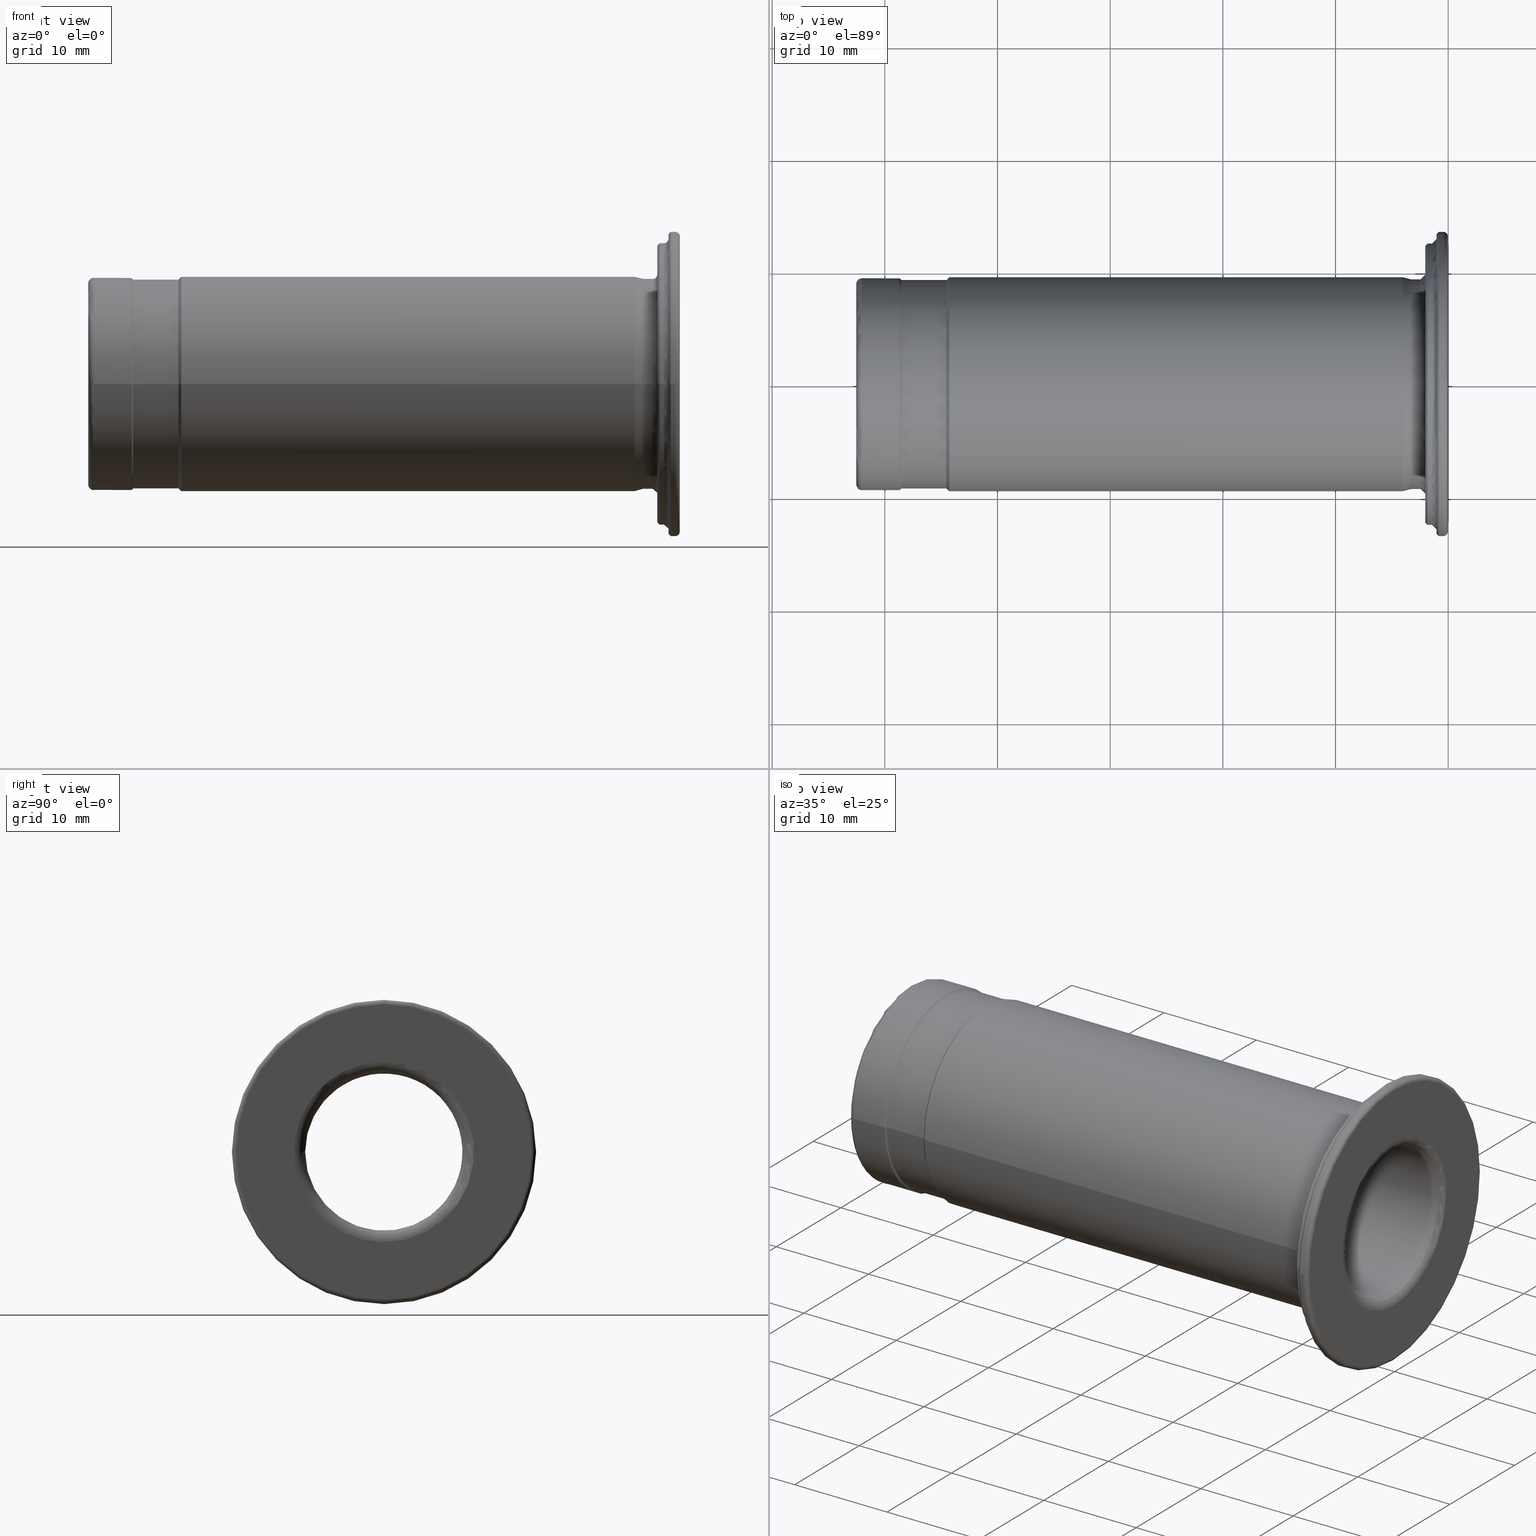
[diagram: canonical four-view strip — front | top / right | iso, engineering-drawing reading convention]
A machine part, canonical four-view strip (front | top / right | iso — engineering-drawing reading convention). The complete STEP part file that produces these views, byte-faithful:
ISO-10303-21;
HEADER;
/* Generated by software containing ST-Developer
 * from STEP Tools, Inc. (www.steptools.com) 
 */

FILE_DESCRIPTION(
/* description */ (''),
/* implementation_level */ '2;1');

FILE_NAME(
/* name */ 
'\\\\SSKT-NAS\\Lab-Data\\\X2\C5F0AD6CC18C\X0\\\DRAWING_3D\\1. \X2\C778BCA4D130\X0\\\
4. LAY-OUT\\ACCESSORY&OTEHERS\\HYDRAULIC CHUCK\\REDUCTION SLEEVE (COLL
ET)\\HK\\HK19.05\\METRIC\\HK19.05-14\\HK19.05-14.stp',
/* time_stamp */ '2023-08-17T14:44:47+09:00',
/* author */ ('YSH'),
/* organization */ (''),
/* preprocessor_version */ 'ST-DEVELOPER v18.1',
/* originating_system */ 'Autodesk Inventor 2022',
/* authorisation */ '');

FILE_SCHEMA (('AUTOMOTIVE_DESIGN { 1 0 10303 214 3 1 1 }'));
ENDSEC;

DATA;
#10=MECHANICAL_DESIGN_GEOMETRIC_PRESENTATION_REPRESENTATION('',(#13),#857);
#11=SHAPE_REPRESENTATION_RELATIONSHIP('SRR','None',#864,#12);
#12=ADVANCED_BREP_SHAPE_REPRESENTATION('',(#14),#856);
#13=STYLED_ITEM('',(#873),#14);
#14=MANIFOLD_SOLID_BREP('\X2\C194B9ACB4DC\X0\1',#451);
#15=FACE_BOUND('',#74,.T.);
#16=FACE_BOUND('',#79,.T.);
#17=FACE_BOUND('',#84,.T.);
#18=FACE_BOUND('',#95,.T.);
#19=PLANE('',#488);
#20=PLANE('',#498);
#21=PLANE('',#508);
#22=PLANE('',#535);
#23=CYLINDRICAL_SURFACE('',#482,9.32499999999937);
#24=CYLINDRICAL_SURFACE('',#492,12.4999999999996);
#25=CYLINDRICAL_SURFACE('',#502,13.5);
#26=CYLINDRICAL_SURFACE('',#521,7.00000000000097);
#27=CYLINDRICAL_SURFACE('',#525,7.50000000000011);
#28=CYLINDRICAL_SURFACE('',#529,8.2500000000001);
#29=CYLINDRICAL_SURFACE('',#541,9.42500000000011);
#30=CYLINDRICAL_SURFACE('',#545,9.27500000000011);
#31=CYLINDRICAL_SURFACE('',#549,9.5250000000001);
#32=TOROIDAL_SURFACE('',#478,9.72499999999992,0.4);
#33=TOROIDAL_SURFACE('',#485,9.72499999999899,0.4);
#34=TOROIDAL_SURFACE('',#495,12.8999999999993,0.4);
#35=TOROIDAL_SURFACE('',#505,13.1,0.4);
#36=TOROIDAL_SURFACE('',#510,8.00000000000099,1.);
#37=TOROIDAL_SURFACE('',#517,8.00000000000099,1.);
#38=TOROIDAL_SURFACE('',#532,8.75000000000009,0.5);
#39=TOROIDAL_SURFACE('',#537,8.92500000000015,0.5);
#40=FACE_OUTER_BOUND('',#69,.T.);
#41=FACE_OUTER_BOUND('',#70,.T.);
#42=FACE_OUTER_BOUND('',#71,.T.);
#43=FACE_OUTER_BOUND('',#72,.T.);
#44=FACE_OUTER_BOUND('',#73,.T.);
#45=FACE_OUTER_BOUND('',#75,.T.);
#46=FACE_OUTER_BOUND('',#76,.T.);
#47=FACE_OUTER_BOUND('',#77,.T.);
#48=FACE_OUTER_BOUND('',#78,.T.);
#49=FACE_OUTER_BOUND('',#80,.T.);
#50=FACE_OUTER_BOUND('',#81,.T.);
#51=FACE_OUTER_BOUND('',#82,.T.);
#52=FACE_OUTER_BOUND('',#83,.T.);
#53=FACE_OUTER_BOUND('',#85,.T.);
#54=FACE_OUTER_BOUND('',#86,.T.);
#55=FACE_OUTER_BOUND('',#87,.T.);
#56=FACE_OUTER_BOUND('',#88,.T.);
#57=FACE_OUTER_BOUND('',#89,.T.);
#58=FACE_OUTER_BOUND('',#90,.T.);
#59=FACE_OUTER_BOUND('',#91,.T.);
#60=FACE_OUTER_BOUND('',#92,.T.);
#61=FACE_OUTER_BOUND('',#93,.T.);
#62=FACE_OUTER_BOUND('',#94,.T.);
#63=FACE_OUTER_BOUND('',#96,.T.);
#64=FACE_OUTER_BOUND('',#97,.T.);
#65=FACE_OUTER_BOUND('',#98,.T.);
#66=FACE_OUTER_BOUND('',#99,.T.);
#67=FACE_OUTER_BOUND('',#100,.T.);
#68=FACE_OUTER_BOUND('',#101,.T.);
#69=EDGE_LOOP('',(#286,#287,#288,#289,#290));
#70=EDGE_LOOP('',(#291,#292,#293,#294,#295,#296));
#71=EDGE_LOOP('',(#297,#298,#299,#300,#301,#302));
#72=EDGE_LOOP('',(#303,#304,#305,#306,#307));
#73=EDGE_LOOP('',(#308));
#74=EDGE_LOOP('',(#309));
#75=EDGE_LOOP('',(#310,#311,#312,#313));
#76=EDGE_LOOP('',(#314,#315,#316,#317,#318));
#77=EDGE_LOOP('',(#319,#320,#321,#322,#323));
#78=EDGE_LOOP('',(#324));
#79=EDGE_LOOP('',(#325));
#80=EDGE_LOOP('',(#326,#327,#328,#329));
#81=EDGE_LOOP('',(#330,#331,#332,#333,#334));
#82=EDGE_LOOP('',(#335,#336,#337,#338,#339));
#83=EDGE_LOOP('',(#340));
#84=EDGE_LOOP('',(#341));
#85=EDGE_LOOP('',(#342,#343,#344,#345,#346));
#86=EDGE_LOOP('',(#347,#348,#349,#350,#351,#352));
#87=EDGE_LOOP('',(#353,#354,#355,#356,#357,#358));
#88=EDGE_LOOP('',(#359,#360,#361,#362,#363));
#89=EDGE_LOOP('',(#364,#365,#366,#367));
#90=EDGE_LOOP('',(#368,#369,#370,#371));
#91=EDGE_LOOP('',(#372,#373,#374,#375));
#92=EDGE_LOOP('',(#376,#377,#378,#379,#380));
#93=EDGE_LOOP('',(#381,#382,#383,#384,#385));
#94=EDGE_LOOP('',(#386));
#95=EDGE_LOOP('',(#387));
#96=EDGE_LOOP('',(#388,#389,#390,#391,#392));
#97=EDGE_LOOP('',(#393,#394,#395,#396,#397));
#98=EDGE_LOOP('',(#398,#399,#400,#401));
#99=EDGE_LOOP('',(#402,#403,#404,#405));
#100=EDGE_LOOP('',(#406,#407,#408,#409));
#101=EDGE_LOOP('',(#410,#411,#412,#413));
#102=LINE('',#727,#119);
#103=LINE('',#740,#120);
#104=LINE('',#752,#121);
#105=LINE('',#757,#122);
#106=LINE('',#769,#123);
#107=LINE('',#774,#124);
#108=LINE('',#791,#125);
#109=LINE('',#803,#126);
#110=LINE('',#807,#127);
#111=LINE('',#811,#128);
#112=LINE('',#815,#129);
#113=LINE('',#819,#130);
#114=LINE('',#839,#131);
#115=LINE('',#843,#132);
#116=LINE('',#847,#133);
#117=LINE('',#851,#134);
#118=LINE('',#853,#135);
#119=VECTOR('',#556,9.43181483474202);
#120=VECTOR('',#573,9.32499999999937);
#121=VECTOR('',#590,12.4000000000002);
#122=VECTOR('',#595,12.4999999999996);
#123=VECTOR('',#612,13.4000000000002);
#124=VECTOR('',#617,13.5);
#125=VECTOR('',#640,7.16348369626317);
#126=VECTOR('',#655,7.00000000000097);
#127=VECTOR('',#660,7.25000000000053);
#128=VECTOR('',#665,7.50000000000011);
#129=VECTOR('',#670,7.8750000000001);
#130=VECTOR('',#675,8.2500000000001);
#131=VECTOR('',#702,9.42500000000011);
#132=VECTOR('',#707,9.3500000000001);
#133=VECTOR('',#712,9.27500000000011);
#134=VECTOR('',#717,9.4000000000001);
#135=VECTOR('',#720,9.5250000000001);
#136=CIRCLE('',#475,9.33862966948429);
#137=CIRCLE('',#476,9.5250000000001);
#138=CIRCLE('',#477,9.33862966948429);
#139=CIRCLE('',#479,0.4);
#140=CIRCLE('',#480,9.32499999999992);
#141=CIRCLE('',#481,9.32499999999992);
#142=CIRCLE('',#483,9.32499999999937);
#143=CIRCLE('',#484,9.32499999999937);
#144=CIRCLE('',#486,0.4);
#145=CIRCLE('',#487,9.72499999999901);
#146=CIRCLE('',#489,12.3000000000003);
#147=CIRCLE('',#491,12.5000000000001);
#148=CIRCLE('',#493,12.4999999999993);
#149=CIRCLE('',#494,12.4999999999993);
#150=CIRCLE('',#496,0.4);
#151=CIRCLE('',#497,12.8999999999993);
#152=CIRCLE('',#499,13.3000000000003);
#153=CIRCLE('',#501,13.5000000000001);
#154=CIRCLE('',#503,13.5);
#155=CIRCLE('',#504,13.5);
#156=CIRCLE('',#506,13.1);
#157=CIRCLE('',#507,0.4);
#158=CIRCLE('',#509,8.00000000000099);
#159=CIRCLE('',#511,7.29289321881442);
#160=CIRCLE('',#512,7.29289321881442);
#161=CIRCLE('',#513,1.);
#162=CIRCLE('',#515,7.03407417371191);
#163=CIRCLE('',#516,7.03407417371191);
#164=CIRCLE('',#518,7.00000000000097);
#165=CIRCLE('',#519,7.00000000000097);
#166=CIRCLE('',#520,1.);
#167=CIRCLE('',#522,7.00000000000097);
#168=CIRCLE('',#524,7.50000000000009);
#169=CIRCLE('',#526,7.50000000000009);
#170=CIRCLE('',#528,8.2500000000001);
#171=CIRCLE('',#530,8.25000000000009);
#172=CIRCLE('',#531,8.25000000000009);
#173=CIRCLE('',#533,8.75000000000009);
#174=CIRCLE('',#534,0.5);
#175=CIRCLE('',#536,8.92500000000015);
#176=CIRCLE('',#538,9.42500000000015);
#177=CIRCLE('',#539,9.42500000000015);
#178=CIRCLE('',#540,0.5);
#179=CIRCLE('',#542,9.42500000000008);
#180=CIRCLE('',#544,9.27500000000011);
#181=CIRCLE('',#546,9.27500000000011);
#182=CIRCLE('',#548,9.5250000000001);
#183=VERTEX_POINT('',#723);
#184=VERTEX_POINT('',#724);
#185=VERTEX_POINT('',#726);
#186=VERTEX_POINT('',#731);
#187=VERTEX_POINT('',#733);
#188=VERTEX_POINT('',#737);
#189=VERTEX_POINT('',#738);
#190=VERTEX_POINT('',#743);
#191=VERTEX_POINT('',#747);
#192=VERTEX_POINT('',#750);
#193=VERTEX_POINT('',#754);
#194=VERTEX_POINT('',#755);
#195=VERTEX_POINT('',#760);
#196=VERTEX_POINT('',#764);
#197=VERTEX_POINT('',#767);
#198=VERTEX_POINT('',#771);
#199=VERTEX_POINT('',#772);
#200=VERTEX_POINT('',#777);
#201=VERTEX_POINT('',#781);
#202=VERTEX_POINT('',#784);
#203=VERTEX_POINT('',#785);
#204=VERTEX_POINT('',#790);
#205=VERTEX_POINT('',#792);
#206=VERTEX_POINT('',#796);
#207=VERTEX_POINT('',#797);
#208=VERTEX_POINT('',#802);
#209=VERTEX_POINT('',#806);
#210=VERTEX_POINT('',#810);
#211=VERTEX_POINT('',#814);
#212=VERTEX_POINT('',#818);
#213=VERTEX_POINT('',#820);
#214=VERTEX_POINT('',#824);
#215=VERTEX_POINT('',#828);
#216=VERTEX_POINT('',#831);
#217=VERTEX_POINT('',#832);
#218=VERTEX_POINT('',#837);
#219=VERTEX_POINT('',#841);
#220=VERTEX_POINT('',#845);
#221=VERTEX_POINT('',#849);
#222=EDGE_CURVE('',#183,#184,#136,.T.);
#223=EDGE_CURVE('',#183,#185,#102,.T.);
#224=EDGE_CURVE('',#185,#185,#137,.T.);
#225=EDGE_CURVE('',#184,#183,#138,.T.);
#226=EDGE_CURVE('',#184,#186,#139,.T.);
#227=EDGE_CURVE('',#187,#186,#140,.T.);
#228=EDGE_CURVE('',#186,#187,#141,.T.);
#229=EDGE_CURVE('',#188,#189,#142,.T.);
#230=EDGE_CURVE('',#188,#187,#103,.T.);
#231=EDGE_CURVE('',#189,#188,#143,.T.);
#232=EDGE_CURVE('',#189,#190,#144,.T.);
#233=EDGE_CURVE('',#190,#190,#145,.T.);
#234=EDGE_CURVE('',#191,#191,#146,.T.);
#235=EDGE_CURVE('',#192,#192,#147,.T.);
#236=EDGE_CURVE('',#192,#191,#104,.T.);
#237=EDGE_CURVE('',#193,#194,#148,.T.);
#238=EDGE_CURVE('',#193,#192,#105,.T.);
#239=EDGE_CURVE('',#194,#193,#149,.T.);
#240=EDGE_CURVE('',#194,#195,#150,.T.);
#241=EDGE_CURVE('',#195,#195,#151,.T.);
#242=EDGE_CURVE('',#196,#196,#152,.T.);
#243=EDGE_CURVE('',#197,#197,#153,.T.);
#244=EDGE_CURVE('',#197,#196,#106,.T.);
#245=EDGE_CURVE('',#198,#199,#154,.T.);
#246=EDGE_CURVE('',#198,#197,#107,.T.);
#247=EDGE_CURVE('',#199,#198,#155,.T.);
#248=EDGE_CURVE('',#200,#200,#156,.T.);
#249=EDGE_CURVE('',#200,#199,#157,.T.);
#250=EDGE_CURVE('',#201,#201,#158,.T.);
#251=EDGE_CURVE('',#202,#203,#159,.T.);
#252=EDGE_CURVE('',#203,#202,#160,.T.);
#253=EDGE_CURVE('',#203,#201,#161,.T.);
#254=EDGE_CURVE('',#202,#204,#108,.T.);
#255=EDGE_CURVE('',#205,#204,#162,.T.);
#256=EDGE_CURVE('',#204,#205,#163,.T.);
#257=EDGE_CURVE('',#206,#207,#164,.T.);
#258=EDGE_CURVE('',#207,#206,#165,.T.);
#259=EDGE_CURVE('',#207,#205,#166,.T.);
#260=EDGE_CURVE('',#206,#208,#109,.T.);
#261=EDGE_CURVE('',#208,#208,#167,.T.);
#262=EDGE_CURVE('',#208,#209,#110,.T.);
#263=EDGE_CURVE('',#209,#209,#168,.T.);
#264=EDGE_CURVE('',#209,#210,#111,.T.);
#265=EDGE_CURVE('',#210,#210,#169,.T.);
#266=EDGE_CURVE('',#210,#211,#112,.T.);
#267=EDGE_CURVE('',#211,#211,#170,.T.);
#268=EDGE_CURVE('',#211,#212,#113,.T.);
#269=EDGE_CURVE('',#213,#212,#171,.T.);
#270=EDGE_CURVE('',#212,#213,#172,.T.);
#271=EDGE_CURVE('',#214,#214,#173,.T.);
#272=EDGE_CURVE('',#214,#213,#174,.T.);
#273=EDGE_CURVE('',#215,#215,#175,.T.);
#274=EDGE_CURVE('',#216,#217,#176,.T.);
#275=EDGE_CURVE('',#217,#216,#177,.T.);
#276=EDGE_CURVE('',#217,#215,#178,.T.);
#277=EDGE_CURVE('',#218,#218,#179,.T.);
#278=EDGE_CURVE('',#218,#216,#114,.T.);
#279=EDGE_CURVE('',#219,#219,#180,.T.);
#280=EDGE_CURVE('',#219,#218,#115,.T.);
#281=EDGE_CURVE('',#220,#220,#181,.T.);
#282=EDGE_CURVE('',#220,#219,#116,.T.);
#283=EDGE_CURVE('',#221,#221,#182,.T.);
#284=EDGE_CURVE('',#221,#220,#117,.T.);
#285=EDGE_CURVE('',#185,#221,#118,.T.);
#286=ORIENTED_EDGE('',*,*,#222,.F.);
#287=ORIENTED_EDGE('',*,*,#223,.T.);
#288=ORIENTED_EDGE('',*,*,#224,.T.);
#289=ORIENTED_EDGE('',*,*,#223,.F.);
#290=ORIENTED_EDGE('',*,*,#225,.F.);
#291=ORIENTED_EDGE('',*,*,#222,.T.);
#292=ORIENTED_EDGE('',*,*,#226,.T.);
#293=ORIENTED_EDGE('',*,*,#227,.F.);
#294=ORIENTED_EDGE('',*,*,#228,.F.);
#295=ORIENTED_EDGE('',*,*,#226,.F.);
#296=ORIENTED_EDGE('',*,*,#225,.T.);
#297=ORIENTED_EDGE('',*,*,#229,.F.);
#298=ORIENTED_EDGE('',*,*,#230,.T.);
#299=ORIENTED_EDGE('',*,*,#227,.T.);
#300=ORIENTED_EDGE('',*,*,#228,.T.);
#301=ORIENTED_EDGE('',*,*,#230,.F.);
#302=ORIENTED_EDGE('',*,*,#231,.F.);
#303=ORIENTED_EDGE('',*,*,#229,.T.);
#304=ORIENTED_EDGE('',*,*,#232,.T.);
#305=ORIENTED_EDGE('',*,*,#233,.F.);
#306=ORIENTED_EDGE('',*,*,#232,.F.);
#307=ORIENTED_EDGE('',*,*,#231,.T.);
#308=ORIENTED_EDGE('',*,*,#234,.F.);
#309=ORIENTED_EDGE('',*,*,#233,.T.);
#310=ORIENTED_EDGE('',*,*,#235,.F.);
#311=ORIENTED_EDGE('',*,*,#236,.T.);
#312=ORIENTED_EDGE('',*,*,#234,.T.);
#313=ORIENTED_EDGE('',*,*,#236,.F.);
#314=ORIENTED_EDGE('',*,*,#237,.F.);
#315=ORIENTED_EDGE('',*,*,#238,.T.);
#316=ORIENTED_EDGE('',*,*,#235,.T.);
#317=ORIENTED_EDGE('',*,*,#238,.F.);
#318=ORIENTED_EDGE('',*,*,#239,.F.);
#319=ORIENTED_EDGE('',*,*,#237,.T.);
#320=ORIENTED_EDGE('',*,*,#240,.T.);
#321=ORIENTED_EDGE('',*,*,#241,.F.);
#322=ORIENTED_EDGE('',*,*,#240,.F.);
#323=ORIENTED_EDGE('',*,*,#239,.T.);
#324=ORIENTED_EDGE('',*,*,#242,.F.);
#325=ORIENTED_EDGE('',*,*,#241,.T.);
#326=ORIENTED_EDGE('',*,*,#243,.F.);
#327=ORIENTED_EDGE('',*,*,#244,.T.);
#328=ORIENTED_EDGE('',*,*,#242,.T.);
#329=ORIENTED_EDGE('',*,*,#244,.F.);
#330=ORIENTED_EDGE('',*,*,#245,.F.);
#331=ORIENTED_EDGE('',*,*,#246,.T.);
#332=ORIENTED_EDGE('',*,*,#243,.T.);
#333=ORIENTED_EDGE('',*,*,#246,.F.);
#334=ORIENTED_EDGE('',*,*,#247,.F.);
#335=ORIENTED_EDGE('',*,*,#248,.F.);
#336=ORIENTED_EDGE('',*,*,#249,.T.);
#337=ORIENTED_EDGE('',*,*,#247,.T.);
#338=ORIENTED_EDGE('',*,*,#245,.T.);
#339=ORIENTED_EDGE('',*,*,#249,.F.);
#340=ORIENTED_EDGE('',*,*,#248,.T.);
#341=ORIENTED_EDGE('',*,*,#250,.F.);
#342=ORIENTED_EDGE('',*,*,#251,.F.);
#343=ORIENTED_EDGE('',*,*,#252,.F.);
#344=ORIENTED_EDGE('',*,*,#253,.T.);
#345=ORIENTED_EDGE('',*,*,#250,.T.);
#346=ORIENTED_EDGE('',*,*,#253,.F.);
#347=ORIENTED_EDGE('',*,*,#251,.T.);
#348=ORIENTED_EDGE('',*,*,#252,.T.);
#349=ORIENTED_EDGE('',*,*,#254,.T.);
#350=ORIENTED_EDGE('',*,*,#255,.F.);
#351=ORIENTED_EDGE('',*,*,#256,.F.);
#352=ORIENTED_EDGE('',*,*,#254,.F.);
#353=ORIENTED_EDGE('',*,*,#257,.F.);
#354=ORIENTED_EDGE('',*,*,#258,.F.);
#355=ORIENTED_EDGE('',*,*,#259,.T.);
#356=ORIENTED_EDGE('',*,*,#255,.T.);
#357=ORIENTED_EDGE('',*,*,#256,.T.);
#358=ORIENTED_EDGE('',*,*,#259,.F.);
#359=ORIENTED_EDGE('',*,*,#257,.T.);
#360=ORIENTED_EDGE('',*,*,#258,.T.);
#361=ORIENTED_EDGE('',*,*,#260,.T.);
#362=ORIENTED_EDGE('',*,*,#261,.F.);
#363=ORIENTED_EDGE('',*,*,#260,.F.);
#364=ORIENTED_EDGE('',*,*,#261,.T.);
#365=ORIENTED_EDGE('',*,*,#262,.T.);
#366=ORIENTED_EDGE('',*,*,#263,.F.);
#367=ORIENTED_EDGE('',*,*,#262,.F.);
#368=ORIENTED_EDGE('',*,*,#263,.T.);
#369=ORIENTED_EDGE('',*,*,#264,.T.);
#370=ORIENTED_EDGE('',*,*,#265,.F.);
#371=ORIENTED_EDGE('',*,*,#264,.F.);
#372=ORIENTED_EDGE('',*,*,#265,.T.);
#373=ORIENTED_EDGE('',*,*,#266,.T.);
#374=ORIENTED_EDGE('',*,*,#267,.F.);
#375=ORIENTED_EDGE('',*,*,#266,.F.);
#376=ORIENTED_EDGE('',*,*,#267,.T.);
#377=ORIENTED_EDGE('',*,*,#268,.T.);
#378=ORIENTED_EDGE('',*,*,#269,.F.);
#379=ORIENTED_EDGE('',*,*,#270,.F.);
#380=ORIENTED_EDGE('',*,*,#268,.F.);
#381=ORIENTED_EDGE('',*,*,#271,.F.);
#382=ORIENTED_EDGE('',*,*,#272,.T.);
#383=ORIENTED_EDGE('',*,*,#269,.T.);
#384=ORIENTED_EDGE('',*,*,#270,.T.);
#385=ORIENTED_EDGE('',*,*,#272,.F.);
#386=ORIENTED_EDGE('',*,*,#273,.F.);
#387=ORIENTED_EDGE('',*,*,#271,.T.);
#388=ORIENTED_EDGE('',*,*,#274,.F.);
#389=ORIENTED_EDGE('',*,*,#275,.F.);
#390=ORIENTED_EDGE('',*,*,#276,.T.);
#391=ORIENTED_EDGE('',*,*,#273,.T.);
#392=ORIENTED_EDGE('',*,*,#276,.F.);
#393=ORIENTED_EDGE('',*,*,#277,.F.);
#394=ORIENTED_EDGE('',*,*,#278,.T.);
#395=ORIENTED_EDGE('',*,*,#274,.T.);
#396=ORIENTED_EDGE('',*,*,#275,.T.);
#397=ORIENTED_EDGE('',*,*,#278,.F.);
#398=ORIENTED_EDGE('',*,*,#279,.F.);
#399=ORIENTED_EDGE('',*,*,#280,.T.);
#400=ORIENTED_EDGE('',*,*,#277,.T.);
#401=ORIENTED_EDGE('',*,*,#280,.F.);
#402=ORIENTED_EDGE('',*,*,#281,.F.);
#403=ORIENTED_EDGE('',*,*,#282,.T.);
#404=ORIENTED_EDGE('',*,*,#279,.T.);
#405=ORIENTED_EDGE('',*,*,#282,.F.);
#406=ORIENTED_EDGE('',*,*,#283,.F.);
#407=ORIENTED_EDGE('',*,*,#284,.T.);
#408=ORIENTED_EDGE('',*,*,#281,.T.);
#409=ORIENTED_EDGE('',*,*,#284,.F.);
#410=ORIENTED_EDGE('',*,*,#224,.F.);
#411=ORIENTED_EDGE('',*,*,#285,.T.);
#412=ORIENTED_EDGE('',*,*,#283,.T.);
#413=ORIENTED_EDGE('',*,*,#285,.F.);
#414=CONICAL_SURFACE('',#474,9.43181483474202,0.261799387799983);
#415=CONICAL_SURFACE('',#490,12.4000000000002,0.785398163396383);
#416=CONICAL_SURFACE('',#500,13.4000000000002,0.785398163396913);
#417=CONICAL_SURFACE('',#514,7.16348369626317,0.523598775598306);
#418=CONICAL_SURFACE('',#523,7.25000000000053,0.785398163397519);
#419=CONICAL_SURFACE('',#527,7.8750000000001,0.785398163397626);
#420=CONICAL_SURFACE('',#543,9.3500000000001,0.785398163396856);
#421=CONICAL_SURFACE('',#547,9.4000000000001,0.785398163397519);
#422=ADVANCED_FACE('',(#40),#414,.T.);
#423=ADVANCED_FACE('',(#41),#32,.F.);
#424=ADVANCED_FACE('',(#42),#23,.T.);
#425=ADVANCED_FACE('',(#43),#33,.F.);
#426=ADVANCED_FACE('',(#44,#15),#19,.T.);
#427=ADVANCED_FACE('',(#45),#415,.T.);
#428=ADVANCED_FACE('',(#46),#24,.T.);
#429=ADVANCED_FACE('',(#47),#34,.F.);
#430=ADVANCED_FACE('',(#48,#16),#20,.T.);
#431=ADVANCED_FACE('',(#49),#416,.T.);
#432=ADVANCED_FACE('',(#50),#25,.T.);
#433=ADVANCED_FACE('',(#51),#35,.T.);
#434=ADVANCED_FACE('',(#52,#17),#21,.T.);
#435=ADVANCED_FACE('',(#53),#36,.T.);
#436=ADVANCED_FACE('',(#54),#417,.F.);
#437=ADVANCED_FACE('',(#55),#37,.T.);
#438=ADVANCED_FACE('',(#56),#26,.F.);
#439=ADVANCED_FACE('',(#57),#418,.F.);
#440=ADVANCED_FACE('',(#58),#27,.F.);
#441=ADVANCED_FACE('',(#59),#419,.F.);
#442=ADVANCED_FACE('',(#60),#28,.F.);
#443=ADVANCED_FACE('',(#61),#38,.T.);
#444=ADVANCED_FACE('',(#62,#18),#22,.T.);
#445=ADVANCED_FACE('',(#63),#39,.T.);
#446=ADVANCED_FACE('',(#64),#29,.T.);
#447=ADVANCED_FACE('',(#65),#420,.T.);
#448=ADVANCED_FACE('',(#66),#30,.T.);
#449=ADVANCED_FACE('',(#67),#421,.T.);
#450=ADVANCED_FACE('',(#68),#31,.T.);
#451=CLOSED_SHELL('',(#422,#423,#424,#425,#426,#427,#428,#429,#430,#431,
#432,#433,#434,#435,#436,#437,#438,#439,#440,#441,#442,#443,#444,#445,#446,
#447,#448,#449,#450));
#452=DERIVED_UNIT_ELEMENT(#455,1.);
#453=DERIVED_UNIT_ELEMENT(#859,-3.);
#454=DIMENSIONAL_EXPONENTS(1.,0.,0.,0.,0.,0.,0.);
#455=(
CONVERSION_BASED_UNIT('gram',#457)
MASS_UNIT()
NAMED_UNIT(#454)
);
#456=(
MASS_UNIT()
NAMED_UNIT(*)
SI_UNIT(.KILO.,.GRAM.)
);
#457=MASS_MEASURE_WITH_UNIT(MASS_MEASURE(0.001),#456);
#458=DERIVED_UNIT((#452,#453));
#459=MEASURE_REPRESENTATION_ITEM('density measure',
POSITIVE_RATIO_MEASURE(7.85),#458);
#460=PROPERTY_DEFINITION_REPRESENTATION(#465,#462);
#461=PROPERTY_DEFINITION_REPRESENTATION(#466,#463);
#462=REPRESENTATION('material name',(#464),#856);
#463=REPRESENTATION('density',(#459),#856);
#464=DESCRIPTIVE_REPRESENTATION_ITEM('SUJ2','SUJ2');
#465=PROPERTY_DEFINITION('material property','material name',#866);
#466=PROPERTY_DEFINITION('material property','density of part',#866);
#467=DATE_TIME_ROLE('creation_date');
#468=APPLIED_DATE_AND_TIME_ASSIGNMENT(#469,#467,(#866));
#469=DATE_AND_TIME(#470,#471);
#470=CALENDAR_DATE(2023,17,8);
#471=LOCAL_TIME(0,0,0.,#472);
#472=COORDINATED_UNIVERSAL_TIME_OFFSET(0,0,.BEHIND.);
#473=AXIS2_PLACEMENT_3D('placement',#721,#550,#551);
#474=AXIS2_PLACEMENT_3D('',#722,#552,#553);
#475=AXIS2_PLACEMENT_3D('',#725,#554,#555);
#476=AXIS2_PLACEMENT_3D('',#728,#557,#558);
#477=AXIS2_PLACEMENT_3D('',#729,#559,#560);
#478=AXIS2_PLACEMENT_3D('',#730,#561,#562);
#479=AXIS2_PLACEMENT_3D('',#732,#563,#564);
#480=AXIS2_PLACEMENT_3D('',#734,#565,#566);
#481=AXIS2_PLACEMENT_3D('',#735,#567,#568);
#482=AXIS2_PLACEMENT_3D('',#736,#569,#570);
#483=AXIS2_PLACEMENT_3D('',#739,#571,#572);
#484=AXIS2_PLACEMENT_3D('',#741,#574,#575);
#485=AXIS2_PLACEMENT_3D('',#742,#576,#577);
#486=AXIS2_PLACEMENT_3D('',#744,#578,#579);
#487=AXIS2_PLACEMENT_3D('',#745,#580,#581);
#488=AXIS2_PLACEMENT_3D('',#746,#582,#583);
#489=AXIS2_PLACEMENT_3D('',#748,#584,#585);
#490=AXIS2_PLACEMENT_3D('',#749,#586,#587);
#491=AXIS2_PLACEMENT_3D('',#751,#588,#589);
#492=AXIS2_PLACEMENT_3D('',#753,#591,#592);
#493=AXIS2_PLACEMENT_3D('',#756,#593,#594);
#494=AXIS2_PLACEMENT_3D('',#758,#596,#597);
#495=AXIS2_PLACEMENT_3D('',#759,#598,#599);
#496=AXIS2_PLACEMENT_3D('',#761,#600,#601);
#497=AXIS2_PLACEMENT_3D('',#762,#602,#603);
#498=AXIS2_PLACEMENT_3D('',#763,#604,#605);
#499=AXIS2_PLACEMENT_3D('',#765,#606,#607);
#500=AXIS2_PLACEMENT_3D('',#766,#608,#609);
#501=AXIS2_PLACEMENT_3D('',#768,#610,#611);
#502=AXIS2_PLACEMENT_3D('',#770,#613,#614);
#503=AXIS2_PLACEMENT_3D('',#773,#615,#616);
#504=AXIS2_PLACEMENT_3D('',#775,#618,#619);
#505=AXIS2_PLACEMENT_3D('',#776,#620,#621);
#506=AXIS2_PLACEMENT_3D('',#778,#622,#623);
#507=AXIS2_PLACEMENT_3D('',#779,#624,#625);
#508=AXIS2_PLACEMENT_3D('',#780,#626,#627);
#509=AXIS2_PLACEMENT_3D('',#782,#628,#629);
#510=AXIS2_PLACEMENT_3D('',#783,#630,#631);
#511=AXIS2_PLACEMENT_3D('',#786,#632,#633);
#512=AXIS2_PLACEMENT_3D('',#787,#634,#635);
#513=AXIS2_PLACEMENT_3D('',#788,#636,#637);
#514=AXIS2_PLACEMENT_3D('',#789,#638,#639);
#515=AXIS2_PLACEMENT_3D('',#793,#641,#642);
#516=AXIS2_PLACEMENT_3D('',#794,#643,#644);
#517=AXIS2_PLACEMENT_3D('',#795,#645,#646);
#518=AXIS2_PLACEMENT_3D('',#798,#647,#648);
#519=AXIS2_PLACEMENT_3D('',#799,#649,#650);
#520=AXIS2_PLACEMENT_3D('',#800,#651,#652);
#521=AXIS2_PLACEMENT_3D('',#801,#653,#654);
#522=AXIS2_PLACEMENT_3D('',#804,#656,#657);
#523=AXIS2_PLACEMENT_3D('',#805,#658,#659);
#524=AXIS2_PLACEMENT_3D('',#808,#661,#662);
#525=AXIS2_PLACEMENT_3D('',#809,#663,#664);
#526=AXIS2_PLACEMENT_3D('',#812,#666,#667);
#527=AXIS2_PLACEMENT_3D('',#813,#668,#669);
#528=AXIS2_PLACEMENT_3D('',#816,#671,#672);
#529=AXIS2_PLACEMENT_3D('',#817,#673,#674);
#530=AXIS2_PLACEMENT_3D('',#821,#676,#677);
#531=AXIS2_PLACEMENT_3D('',#822,#678,#679);
#532=AXIS2_PLACEMENT_3D('',#823,#680,#681);
#533=AXIS2_PLACEMENT_3D('',#825,#682,#683);
#534=AXIS2_PLACEMENT_3D('',#826,#684,#685);
#535=AXIS2_PLACEMENT_3D('',#827,#686,#687);
#536=AXIS2_PLACEMENT_3D('',#829,#688,#689);
#537=AXIS2_PLACEMENT_3D('',#830,#690,#691);
#538=AXIS2_PLACEMENT_3D('',#833,#692,#693);
#539=AXIS2_PLACEMENT_3D('',#834,#694,#695);
#540=AXIS2_PLACEMENT_3D('',#835,#696,#697);
#541=AXIS2_PLACEMENT_3D('',#836,#698,#699);
#542=AXIS2_PLACEMENT_3D('',#838,#700,#701);
#543=AXIS2_PLACEMENT_3D('',#840,#703,#704);
#544=AXIS2_PLACEMENT_3D('',#842,#705,#706);
#545=AXIS2_PLACEMENT_3D('',#844,#708,#709);
#546=AXIS2_PLACEMENT_3D('',#846,#710,#711);
#547=AXIS2_PLACEMENT_3D('',#848,#713,#714);
#548=AXIS2_PLACEMENT_3D('',#850,#715,#716);
#549=AXIS2_PLACEMENT_3D('',#852,#718,#719);
#550=DIRECTION('axis',(0.,0.,1.));
#551=DIRECTION('refdir',(1.,0.,0.));
#552=DIRECTION('center_axis',(-1.,0.,0.));
#553=DIRECTION('ref_axis',(0.,1.,0.));
#554=DIRECTION('center_axis',(1.,0.,0.));
#555=DIRECTION('ref_axis',(0.,0.,-1.));
#556=DIRECTION('',(-0.965925826288852,-0.258819045103326,-3.16961915144163E-17));
#557=DIRECTION('center_axis',(1.,0.,0.));
#558=DIRECTION('ref_axis',(0.,0.,-1.));
#559=DIRECTION('center_axis',(1.,0.,0.));
#560=DIRECTION('ref_axis',(0.,0.,-1.));
#561=DIRECTION('center_axis',(1.,0.,0.));
#562=DIRECTION('ref_axis',(0.,0.,-1.));
#563=DIRECTION('center_axis',(0.,-1.,-1.22464679914735E-16));
#564=DIRECTION('ref_axis',(0.,-1.22464679914735E-16,1.));
#565=DIRECTION('center_axis',(1.,0.,0.));
#566=DIRECTION('ref_axis',(0.,0.,-1.));
#567=DIRECTION('center_axis',(1.,0.,0.));
#568=DIRECTION('ref_axis',(0.,0.,-1.));
#569=DIRECTION('center_axis',(1.,0.,0.));
#570=DIRECTION('ref_axis',(0.,1.,0.));
#571=DIRECTION('center_axis',(1.,0.,0.));
#572=DIRECTION('ref_axis',(0.,0.,-1.));
#573=DIRECTION('',(-1.,0.,0.));
#574=DIRECTION('center_axis',(1.,0.,0.));
#575=DIRECTION('ref_axis',(0.,0.,-1.));
#576=DIRECTION('center_axis',(1.,0.,0.));
#577=DIRECTION('ref_axis',(0.,0.,-1.));
#578=DIRECTION('center_axis',(0.,-1.,-1.22464679914735E-16));
#579=DIRECTION('ref_axis',(0.,-1.22464679914735E-16,1.));
#580=DIRECTION('center_axis',(1.,0.,0.));
#581=DIRECTION('ref_axis',(0.,0.,-1.));
#582=DIRECTION('center_axis',(-1.,0.,0.));
#583=DIRECTION('ref_axis',(0.,0.,1.));
#584=DIRECTION('center_axis',(1.,0.,0.));
#585=DIRECTION('ref_axis',(0.,0.,-1.));
#586=DIRECTION('center_axis',(1.,0.,0.));
#587=DIRECTION('ref_axis',(0.,1.,0.));
#588=DIRECTION('center_axis',(1.,0.,0.));
#589=DIRECTION('ref_axis',(0.,0.,-1.));
#590=DIRECTION('',(-0.707106781187301,0.707106781185794,8.6595605623457E-17));
#591=DIRECTION('center_axis',(1.,0.,0.));
#592=DIRECTION('ref_axis',(0.,1.,0.));
#593=DIRECTION('center_axis',(1.,0.,0.));
#594=DIRECTION('ref_axis',(0.,0.,-1.));
#595=DIRECTION('',(-1.,0.,0.));
#596=DIRECTION('center_axis',(1.,0.,0.));
#597=DIRECTION('ref_axis',(0.,0.,-1.));
#598=DIRECTION('center_axis',(1.,0.,0.));
#599=DIRECTION('ref_axis',(0.,0.,-1.));
#600=DIRECTION('center_axis',(0.,-1.,-1.22464679914735E-16));
#601=DIRECTION('ref_axis',(0.,-1.22464679914735E-16,1.));
#602=DIRECTION('center_axis',(1.,0.,0.));
#603=DIRECTION('ref_axis',(0.,0.,-1.));
#604=DIRECTION('center_axis',(-1.,0.,0.));
#605=DIRECTION('ref_axis',(0.,0.,1.));
#606=DIRECTION('center_axis',(1.,0.,0.));
#607=DIRECTION('ref_axis',(0.,0.,-1.));
#608=DIRECTION('center_axis',(1.,0.,0.));
#609=DIRECTION('ref_axis',(0.,1.,0.));
#610=DIRECTION('center_axis',(1.,0.,0.));
#611=DIRECTION('ref_axis',(0.,0.,-1.));
#612=DIRECTION('',(-0.707106781186926,0.707106781186169,8.65956056235029E-17));
#613=DIRECTION('center_axis',(1.,0.,0.));
#614=DIRECTION('ref_axis',(0.,1.,0.));
#615=DIRECTION('center_axis',(1.,0.,0.));
#616=DIRECTION('ref_axis',(0.,0.,-1.));
#617=DIRECTION('',(-1.,0.,0.));
#618=DIRECTION('center_axis',(1.,0.,0.));
#619=DIRECTION('ref_axis',(0.,0.,-1.));
#620=DIRECTION('center_axis',(1.,0.,0.));
#621=DIRECTION('ref_axis',(0.,0.,-1.));
#622=DIRECTION('center_axis',(1.,0.,0.));
#623=DIRECTION('ref_axis',(0.,0.,-1.));
#624=DIRECTION('center_axis',(0.,-1.,-1.22464679914735E-16));
#625=DIRECTION('ref_axis',(0.,-1.22464679914735E-16,1.));
#626=DIRECTION('center_axis',(1.,0.,0.));
#627=DIRECTION('ref_axis',(0.,0.,-1.));
#628=DIRECTION('center_axis',(1.,0.,0.));
#629=DIRECTION('ref_axis',(0.,0.,-1.));
#630=DIRECTION('center_axis',(1.,0.,0.));
#631=DIRECTION('ref_axis',(0.,0.,-1.));
#632=DIRECTION('center_axis',(1.,0.,0.));
#633=DIRECTION('ref_axis',(0.,0.,-1.));
#634=DIRECTION('center_axis',(1.,0.,0.));
#635=DIRECTION('ref_axis',(0.,0.,-1.));
#636=DIRECTION('center_axis',(0.,-1.,-1.22464679914735E-16));
#637=DIRECTION('ref_axis',(0.,-1.22464679914735E-16,1.));
#638=DIRECTION('center_axis',(1.,0.,0.));
#639=DIRECTION('ref_axis',(0.,1.,0.));
#640=DIRECTION('',(-0.866025403784435,0.500000000000006,6.12323399573684E-17));
#641=DIRECTION('center_axis',(1.,0.,0.));
#642=DIRECTION('ref_axis',(0.,0.,-1.));
#643=DIRECTION('center_axis',(1.,0.,0.));
#644=DIRECTION('ref_axis',(0.,0.,-1.));
#645=DIRECTION('center_axis',(1.,0.,0.));
#646=DIRECTION('ref_axis',(0.,0.,-1.));
#647=DIRECTION('center_axis',(1.,0.,0.));
#648=DIRECTION('ref_axis',(0.,0.,-1.));
#649=DIRECTION('center_axis',(1.,0.,0.));
#650=DIRECTION('ref_axis',(0.,0.,-1.));
#651=DIRECTION('center_axis',(0.,-1.,-1.22464679914735E-16));
#652=DIRECTION('ref_axis',(0.,-1.22464679914735E-16,1.));
#653=DIRECTION('center_axis',(1.,0.,0.));
#654=DIRECTION('ref_axis',(0.,1.,0.));
#655=DIRECTION('',(-1.,0.,0.));
#656=DIRECTION('center_axis',(1.,0.,0.));
#657=DIRECTION('ref_axis',(0.,0.,-1.));
#658=DIRECTION('center_axis',(-1.,0.,0.));
#659=DIRECTION('ref_axis',(0.,1.,0.));
#660=DIRECTION('',(-0.707106781186497,-0.707106781186598,-8.65956056235555E-17));
#661=DIRECTION('center_axis',(1.,0.,0.));
#662=DIRECTION('ref_axis',(0.,0.,-1.));
#663=DIRECTION('center_axis',(1.,0.,0.));
#664=DIRECTION('ref_axis',(0.,1.,0.));
#665=DIRECTION('',(-1.,0.,0.));
#666=DIRECTION('center_axis',(1.,0.,0.));
#667=DIRECTION('ref_axis',(0.,0.,-1.));
#668=DIRECTION('center_axis',(-1.,0.,0.));
#669=DIRECTION('ref_axis',(0.,1.,0.));
#670=DIRECTION('',(-0.707106781186422,-0.707106781186673,-8.65956056235647E-17));
#671=DIRECTION('center_axis',(1.,0.,0.));
#672=DIRECTION('ref_axis',(0.,0.,-1.));
#673=DIRECTION('center_axis',(1.,0.,0.));
#674=DIRECTION('ref_axis',(0.,1.,0.));
#675=DIRECTION('',(-1.,0.,0.));
#676=DIRECTION('center_axis',(1.,0.,0.));
#677=DIRECTION('ref_axis',(0.,0.,-1.));
#678=DIRECTION('center_axis',(1.,0.,0.));
#679=DIRECTION('ref_axis',(0.,0.,-1.));
#680=DIRECTION('center_axis',(1.,0.,0.));
#681=DIRECTION('ref_axis',(0.,0.,-1.));
#682=DIRECTION('center_axis',(1.,0.,0.));
#683=DIRECTION('ref_axis',(0.,0.,-1.));
#684=DIRECTION('center_axis',(0.,-1.,-1.22464679914735E-16));
#685=DIRECTION('ref_axis',(0.,-1.22464679914735E-16,1.));
#686=DIRECTION('center_axis',(-1.,0.,0.));
#687=DIRECTION('ref_axis',(0.,0.,1.));
#688=DIRECTION('center_axis',(1.,0.,0.));
#689=DIRECTION('ref_axis',(0.,0.,-1.));
#690=DIRECTION('center_axis',(1.,0.,0.));
#691=DIRECTION('ref_axis',(0.,0.,-1.));
#692=DIRECTION('center_axis',(1.,0.,0.));
#693=DIRECTION('ref_axis',(0.,0.,-1.));
#694=DIRECTION('center_axis',(1.,0.,0.));
#695=DIRECTION('ref_axis',(0.,0.,-1.));
#696=DIRECTION('center_axis',(0.,-1.,-1.22464679914735E-16));
#697=DIRECTION('ref_axis',(0.,-1.22464679914735E-16,1.));
#698=DIRECTION('center_axis',(1.,0.,0.));
#699=DIRECTION('ref_axis',(0.,1.,0.));
#700=DIRECTION('center_axis',(1.,0.,0.));
#701=DIRECTION('ref_axis',(0.,0.,-1.));
#702=DIRECTION('',(-1.,0.,0.));
#703=DIRECTION('center_axis',(-1.,0.,0.));
#704=DIRECTION('ref_axis',(0.,1.,0.));
#705=DIRECTION('center_axis',(1.,0.,0.));
#706=DIRECTION('ref_axis',(0.,0.,-1.));
#707=DIRECTION('',(-0.707106781186966,-0.707106781186129,-8.65956056234981E-17));
#708=DIRECTION('center_axis',(1.,0.,0.));
#709=DIRECTION('ref_axis',(0.,1.,0.));
#710=DIRECTION('center_axis',(1.,0.,0.));
#711=DIRECTION('ref_axis',(0.,0.,-1.));
#712=DIRECTION('',(-1.,0.,0.));
#713=DIRECTION('center_axis',(1.,0.,0.));
#714=DIRECTION('ref_axis',(0.,1.,0.));
#715=DIRECTION('center_axis',(1.,0.,0.));
#716=DIRECTION('ref_axis',(0.,0.,-1.));
#717=DIRECTION('',(-0.707106781186497,0.707106781186598,8.65956056235555E-17));
#718=DIRECTION('center_axis',(1.,0.,0.));
#719=DIRECTION('ref_axis',(0.,1.,0.));
#720=DIRECTION('',(-1.,0.,0.));
#721=CARTESIAN_POINT('',(0.,0.,0.));
#722=CARTESIAN_POINT('Origin',(-3.68957266639343,0.,0.));
#723=CARTESIAN_POINT('',(-3.34180089513973,-9.33862966948394,-1.1436522933156E-15));
#724=CARTESIAN_POINT('',(-3.34180089513964,-1.14365229331564E-15,9.33862966948429));
#725=CARTESIAN_POINT('Origin',(-3.34180089513964,0.,0.));
#726=CARTESIAN_POINT('',(-4.03734443764712,-9.5250000000001,-1.16647607618787E-15));
#727=CARTESIAN_POINT('',(-3.68957266639343,-9.43181483474202,-1.15506418475173E-15));
#728=CARTESIAN_POINT('Origin',(-4.03734443764712,0.,0.));
#729=CARTESIAN_POINT('Origin',(-3.34180089513964,0.,0.));
#730=CARTESIAN_POINT('Origin',(-3.23827327709864,0.,0.));
#731=CARTESIAN_POINT('',(-3.23827327709864,-1.1419831402049E-15,9.32499999999992));
#732=CARTESIAN_POINT('Origin',(-3.23827327709864,-1.19096901217079E-15,
9.72499999999992));
#733=CARTESIAN_POINT('',(-3.23827327709864,-9.32499999999937,-1.14198314020483E-15));
#734=CARTESIAN_POINT('Origin',(-3.23827327709864,0.,0.));
#735=CARTESIAN_POINT('Origin',(-3.23827327709864,0.,0.));
#736=CARTESIAN_POINT('Origin',(-2.83780885737293,0.,0.));
#737=CARTESIAN_POINT('',(-2.43734443764722,-9.32499999999937,-1.14198314020483E-15));
#738=CARTESIAN_POINT('',(-2.43734443764722,-1.14198314020483E-15,9.32499999999937));
#739=CARTESIAN_POINT('Origin',(-2.43734443764722,0.,0.));
#740=CARTESIAN_POINT('',(-2.83780885737293,-9.32499999999937,-1.14198314020483E-15));
#741=CARTESIAN_POINT('Origin',(-2.43734443764722,0.,0.));
#742=CARTESIAN_POINT('Origin',(-2.43734443764722,0.,0.));
#743=CARTESIAN_POINT('',(-2.03734443764722,-1.19096901217068E-15,9.72499999999901));
#744=CARTESIAN_POINT('Origin',(-2.43734443764722,-1.19096901217068E-15,
9.72499999999899));
#745=CARTESIAN_POINT('Origin',(-2.03734443764722,0.,0.));
#746=CARTESIAN_POINT('Origin',(-2.03734443764731,12.3000000000003,0.));
#747=CARTESIAN_POINT('',(-2.03734443764709,-12.3000000000003,-1.50631556295128E-15));
#748=CARTESIAN_POINT('Origin',(-2.03734443764709,0.,0.));
#749=CARTESIAN_POINT('Origin',(-1.93734443764697,0.,0.));
#750=CARTESIAN_POINT('',(-1.83734443764685,-12.5000000000001,-1.5308084989342E-15));
#751=CARTESIAN_POINT('Origin',(-1.83734443764685,0.,0.));
#752=CARTESIAN_POINT('',(-1.93734443764697,-12.4000000000002,-1.51856203094274E-15));
#753=CARTESIAN_POINT('Origin',(-1.63734443764806,0.,0.));
#754=CARTESIAN_POINT('',(-1.43734443764927,-12.4999999999996,-1.53080849893415E-15));
#755=CARTESIAN_POINT('',(-1.43734443764927,-1.5308084989341E-15,12.4999999999993));
#756=CARTESIAN_POINT('Origin',(-1.43734443764927,0.,0.));
#757=CARTESIAN_POINT('',(-1.63734443764806,-12.4999999999996,-1.53080849893415E-15));
#758=CARTESIAN_POINT('Origin',(-1.43734443764927,0.,0.));
#759=CARTESIAN_POINT('Origin',(-1.43734443764899,0.,0.));
#760=CARTESIAN_POINT('',(-1.03734443764893,-1.5797943709E-15,12.8999999999993));
#761=CARTESIAN_POINT('Origin',(-1.43734443764899,-1.5797943709E-15,12.8999999999993));
#762=CARTESIAN_POINT('Origin',(-1.03734443764893,0.,0.));
#763=CARTESIAN_POINT('Origin',(-1.03734443764893,13.3000000000003,0.));
#764=CARTESIAN_POINT('',(-1.03734443764893,-13.3000000000003,-1.62878024286602E-15));
#765=CARTESIAN_POINT('Origin',(-1.03734443764893,0.,0.));
#766=CARTESIAN_POINT('Origin',(-0.93734443764891,0.,0.));
#767=CARTESIAN_POINT('',(-0.837344437648894,-13.5000000000001,-1.65327317884894E-15));
#768=CARTESIAN_POINT('Origin',(-0.837344437648895,0.,0.));
#769=CARTESIAN_POINT('',(-0.93734443764891,-13.4000000000002,-1.64102671085748E-15));
#770=CARTESIAN_POINT('Origin',(-0.637344437648046,0.,0.));
#771=CARTESIAN_POINT('',(-0.437344437647198,-13.5,-1.65327317884893E-15));
#772=CARTESIAN_POINT('',(-0.437344437647198,-1.65327317884893E-15,13.5));
#773=CARTESIAN_POINT('Origin',(-0.437344437647198,0.,0.));
#774=CARTESIAN_POINT('',(-0.637344437648046,-13.5,-1.65327317884893E-15));
#775=CARTESIAN_POINT('Origin',(-0.437344437647198,0.,0.));
#776=CARTESIAN_POINT('Origin',(-0.437344437647198,0.,0.));
#777=CARTESIAN_POINT('',(-0.0373444376471976,-1.60428730688303E-15,13.1));
#778=CARTESIAN_POINT('Origin',(-0.0373444376471976,0.,0.));
#779=CARTESIAN_POINT('Origin',(-0.437344437647198,-1.60428730688303E-15,
13.1));
#780=CARTESIAN_POINT('Origin',(-0.0373444376472065,8.00000000000099,0.));
#781=CARTESIAN_POINT('',(-0.037344437647433,-9.79717439318004E-16,8.00000000000099));
#782=CARTESIAN_POINT('Origin',(-0.037344437647433,0.,0.));
#783=CARTESIAN_POINT('Origin',(-1.03734443764743,0.,0.));
#784=CARTESIAN_POINT('',(-0.330237656460923,-7.29289321881443,-8.93121833694452E-16));
#785=CARTESIAN_POINT('',(-0.330237656460923,-8.93121833694452E-16,7.29289321881442));
#786=CARTESIAN_POINT('Origin',(-0.330237656460923,0.,0.));
#787=CARTESIAN_POINT('Origin',(-0.330237656460923,0.,0.));
#788=CARTESIAN_POINT('Origin',(-1.03734443764743,-9.79717439318004E-16,
8.00000000000099));
#789=CARTESIAN_POINT('Origin',(-0.554381524502929,0.,0.));
#790=CARTESIAN_POINT('',(-0.778525392544935,-7.03407417371191,-8.61425642180135E-16));
#791=CARTESIAN_POINT('',(-0.554381524502929,-7.16348369626317,-8.77273737937294E-16));
#792=CARTESIAN_POINT('',(-0.778525392544935,-8.61425642180135E-16,7.03407417371191));
#793=CARTESIAN_POINT('Origin',(-0.778525392544935,0.,0.));
#794=CARTESIAN_POINT('Origin',(-0.778525392544935,0.,0.));
#795=CARTESIAN_POINT('Origin',(-1.03734443764743,0.,0.));
#796=CARTESIAN_POINT('',(-1.03734443764743,-7.00000000000097,-8.57252759403267E-16));
#797=CARTESIAN_POINT('',(-1.03734443764743,-8.57252759403267E-16,7.00000000000097));
#798=CARTESIAN_POINT('Origin',(-1.03734443764743,0.,0.));
#799=CARTESIAN_POINT('Origin',(-1.03734443764743,0.,0.));
#800=CARTESIAN_POINT('Origin',(-1.03734443764743,-9.79717439318004E-16,
8.00000000000099));
#801=CARTESIAN_POINT('Origin',(-17.5373444376477,0.,0.));
#802=CARTESIAN_POINT('',(-34.037344437648,-7.00000000000097,-8.57252759403267E-16));
#803=CARTESIAN_POINT('',(-17.5373444376477,-7.00000000000097,-8.57252759403267E-16));
#804=CARTESIAN_POINT('Origin',(-34.037344437648,0.,0.));
#805=CARTESIAN_POINT('Origin',(-34.2873444376475,0.,0.));
#806=CARTESIAN_POINT('',(-34.5373444376471,-7.50000000000009,-9.18485099360526E-16));
#807=CARTESIAN_POINT('',(-34.2873444376475,-7.25000000000053,-8.87868929381896E-16));
#808=CARTESIAN_POINT('Origin',(-34.5373444376471,0.,0.));
#809=CARTESIAN_POINT('Origin',(-35.9123444376472,0.,0.));
#810=CARTESIAN_POINT('',(-37.2873444376473,-7.50000000000011,-9.18485099360529E-16));
#811=CARTESIAN_POINT('',(-35.9123444376472,-7.50000000000011,-9.18485099360529E-16));
#812=CARTESIAN_POINT('Origin',(-37.2873444376473,0.,0.));
#813=CARTESIAN_POINT('Origin',(-37.6623444376472,0.,0.));
#814=CARTESIAN_POINT('',(-38.0373444376471,-8.2500000000001,-1.01033360929658E-15));
#815=CARTESIAN_POINT('',(-37.6623444376472,-7.8750000000001,-9.64409354328553E-16));
#816=CARTESIAN_POINT('Origin',(-38.0373444376471,0.,0.));
#817=CARTESIAN_POINT('Origin',(-45.0373444376471,0.,0.));
#818=CARTESIAN_POINT('',(-52.0373444376472,-8.2500000000001,-1.01033360929658E-15));
#819=CARTESIAN_POINT('',(-45.0373444376471,-8.2500000000001,-1.01033360929658E-15));
#820=CARTESIAN_POINT('',(-52.0373444376472,-1.01033360929658E-15,8.25000000000009));
#821=CARTESIAN_POINT('Origin',(-52.0373444376472,0.,0.));
#822=CARTESIAN_POINT('Origin',(-52.0373444376472,0.,0.));
#823=CARTESIAN_POINT('Origin',(-52.0373444376472,0.,0.));
#824=CARTESIAN_POINT('',(-52.5373444376472,-1.07156594925395E-15,8.75000000000009));
#825=CARTESIAN_POINT('Origin',(-52.5373444376472,0.,0.));
#826=CARTESIAN_POINT('Origin',(-52.0373444376472,-1.07156594925395E-15,
8.75000000000009));
#827=CARTESIAN_POINT('Origin',(-52.5373444376472,8.92500000000015,0.));
#828=CARTESIAN_POINT('',(-52.5373444376472,-1.09299726823903E-15,8.92500000000015));
#829=CARTESIAN_POINT('Origin',(-52.5373444376472,0.,0.));
#830=CARTESIAN_POINT('Origin',(-52.0373444376472,0.,0.));
#831=CARTESIAN_POINT('',(-52.0373444376472,-9.42500000000011,-1.15422960819639E-15));
#832=CARTESIAN_POINT('',(-52.0373444376472,-1.1542296081964E-15,9.42500000000015));
#833=CARTESIAN_POINT('Origin',(-52.0373444376472,0.,0.));
#834=CARTESIAN_POINT('Origin',(-52.0373444376472,0.,0.));
#835=CARTESIAN_POINT('Origin',(-52.0373444376472,-1.09299726823903E-15,
8.92500000000015));
#836=CARTESIAN_POINT('Origin',(-50.3623444376473,0.,0.));
#837=CARTESIAN_POINT('',(-48.6873444376473,-9.42500000000011,-1.15422960819639E-15));
#838=CARTESIAN_POINT('Origin',(-48.6873444376473,0.,0.));
#839=CARTESIAN_POINT('',(-50.3623444376473,-9.42500000000011,-1.15422960819639E-15));
#840=CARTESIAN_POINT('Origin',(-48.6123444376473,0.,0.));
#841=CARTESIAN_POINT('',(-48.5373444376472,-9.27500000000011,-1.13585990620918E-15));
#842=CARTESIAN_POINT('Origin',(-48.5373444376472,0.,0.));
#843=CARTESIAN_POINT('',(-48.6123444376473,-9.3500000000001,-1.14504475720279E-15));
#844=CARTESIAN_POINT('Origin',(-46.5373444376472,0.,0.));
#845=CARTESIAN_POINT('',(-44.5373444376472,-9.27500000000011,-1.13585990620918E-15));
#846=CARTESIAN_POINT('Origin',(-44.5373444376472,0.,0.));
#847=CARTESIAN_POINT('',(-46.5373444376472,-9.27500000000011,-1.13585990620918E-15));
#848=CARTESIAN_POINT('Origin',(-44.4123444376472,0.,0.));
#849=CARTESIAN_POINT('',(-44.2873444376472,-9.5250000000001,-1.16647607618787E-15));
#850=CARTESIAN_POINT('Origin',(-44.2873444376472,0.,0.));
#851=CARTESIAN_POINT('',(-44.4123444376472,-9.4000000000001,-1.15116799119852E-15));
#852=CARTESIAN_POINT('Origin',(-24.1623444376472,0.,0.));
#853=CARTESIAN_POINT('',(-24.1623444376472,-9.5250000000001,-1.16647607618787E-15));
#854=UNCERTAINTY_MEASURE_WITH_UNIT(LENGTH_MEASURE(0.01),#858,
'DISTANCE_ACCURACY_VALUE',
'Maximum model space distance between geometric entities at asserted c
onnectivities');
#855=UNCERTAINTY_MEASURE_WITH_UNIT(LENGTH_MEASURE(0.01),#858,
'DISTANCE_ACCURACY_VALUE',
'Maximum model space distance between geometric entities at asserted c
onnectivities');
#856=(
GEOMETRIC_REPRESENTATION_CONTEXT(3)
GLOBAL_UNCERTAINTY_ASSIGNED_CONTEXT((#854))
GLOBAL_UNIT_ASSIGNED_CONTEXT((#858,#860,#861))
REPRESENTATION_CONTEXT('','3D')
);
#857=(
GEOMETRIC_REPRESENTATION_CONTEXT(3)
GLOBAL_UNCERTAINTY_ASSIGNED_CONTEXT((#855))
GLOBAL_UNIT_ASSIGNED_CONTEXT((#858,#860,#861))
REPRESENTATION_CONTEXT('','3D')
);
#858=(
LENGTH_UNIT()
NAMED_UNIT(*)
SI_UNIT(.MILLI.,.METRE.)
);
#859=(
LENGTH_UNIT()
NAMED_UNIT(*)
SI_UNIT(.CENTI.,.METRE.)
);
#860=(
NAMED_UNIT(*)
PLANE_ANGLE_UNIT()
SI_UNIT($,.RADIAN.)
);
#861=(
NAMED_UNIT(*)
SI_UNIT($,.STERADIAN.)
SOLID_ANGLE_UNIT()
);
#862=SHAPE_DEFINITION_REPRESENTATION(#863,#864);
#863=PRODUCT_DEFINITION_SHAPE('',$,#866);
#864=SHAPE_REPRESENTATION('',(#473),#856);
#865=PRODUCT_DEFINITION_CONTEXT('part definition',#870,'design');
#866=PRODUCT_DEFINITION('HK19.05-14','HK19.05-14',#867,#865);
#867=PRODUCT_DEFINITION_FORMATION('',$,#872);
#868=PRODUCT_RELATED_PRODUCT_CATEGORY('HK19.05-14','HK19.05-14',(#872));
#869=APPLICATION_PROTOCOL_DEFINITION('international standard',
'automotive_design',2009,#870);
#870=APPLICATION_CONTEXT(
'Core Data for Automotive Mechanical Design Process');
#871=PRODUCT_CONTEXT('part definition',#870,'mechanical');
#872=PRODUCT('HK19.05-14','HK19.05-14',$,(#871));
#873=PRESENTATION_STYLE_ASSIGNMENT((#874));
#874=SURFACE_STYLE_USAGE(.BOTH.,#877);
#875=SURFACE_STYLE_RENDERING_WITH_PROPERTIES($,#881,(#876));
#876=SURFACE_STYLE_TRANSPARENT(0.480000019073486);
#877=SURFACE_SIDE_STYLE('',(#878,#875));
#878=SURFACE_STYLE_FILL_AREA(#879);
#879=FILL_AREA_STYLE('',(#880));
#880=FILL_AREA_STYLE_COLOUR('',#881);
#881=COLOUR_RGB('',0.0627450980392157,0.670588235294118,0.290196078431373);
ENDSEC;
END-ISO-10303-21;
